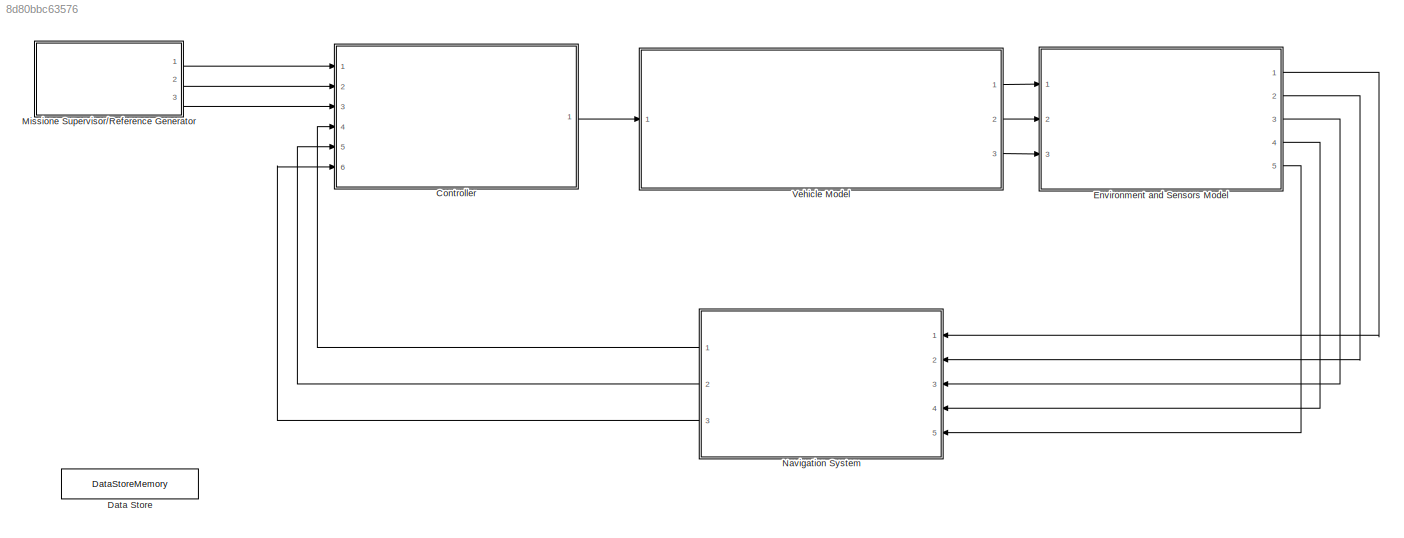
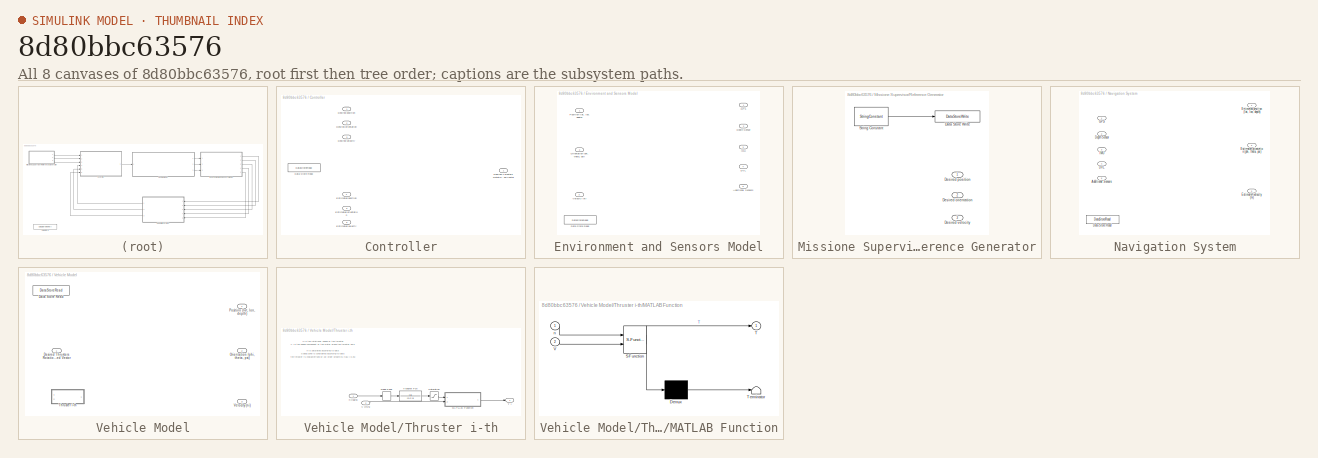
[diagram: thumbnail index - all 8 canvases of the model, root first then tree order]
MODEL slx_8d80bbc63576
KIND model
CONFIG AbsTol = auto
CONFIG EnableMultiTasking = off
CONFIG FixedStep = auto
CONFIG MaxStep = auto
CONFIG MinStep = auto
CONFIG RelTol = 1e-3
CONFIG SampleTimeConstraint = Unconstrained
CONFIG Solver = VariableStepAuto
CONFIG SolverName = VariableStepAuto
CONFIG StartTime = 0.0
CONFIG StopTime = 40
BLOCK [SubSystem] Controller
  Ports = [6, 1]
  RequestExecContextInheritance = off
BLOCK [DataStoreRead] Controller/Data Store Read
  DataStoreName = current_state
  Ports = [0, 1]
  SampleTime = 0.001
BLOCK [Outport] Controller/Desired Thrusters Rotational Speed Vector
  IconDisplay = Port number
BLOCK [Inport] Controller/Desired orientation
  IconDisplay = Port number
  Port = 2
BLOCK [Inport] Controller/Desired position
  IconDisplay = Port number
BLOCK [Inport] Controller/Desired velocity
  IconDisplay = Port number
  Port = 3
BLOCK [Inport] Controller/Estimated orientation
  IconDisplay = Port number
  Port = 5
BLOCK [Inport] Controller/Estimated position
  IconDisplay = Port number
  Port = 4
BLOCK [Inport] Controller/Estimated velocity
  IconDisplay = Port number
  Port = 6
BLOCK [DataStoreMemory] Data Store
  DataStoreName = current_state
  ReadBeforeWriteMsg = warning
  ShowAdditionalParam = off
  WriteAfterReadMsg = warning
  WriteAfterWriteMsg = warning
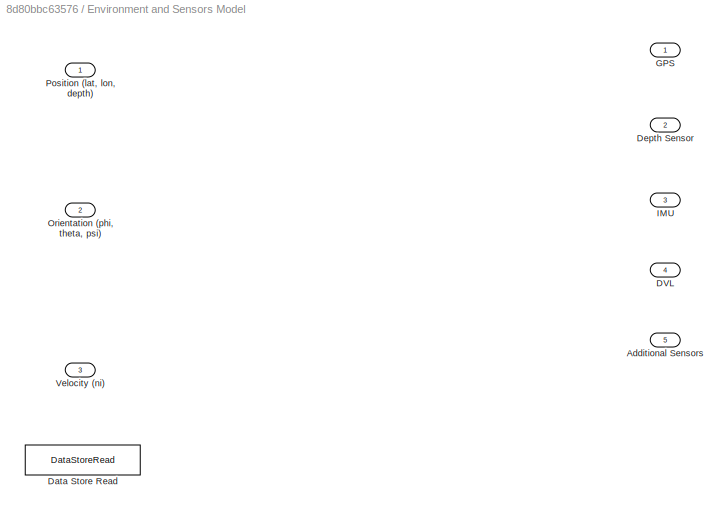
BLOCK [SubSystem] Environment and Sensors Model
  Ports = [3, 5]
  RequestExecContextInheritance = off
BLOCK [Outport] Environment and Sensors Model/Additional Sensors
  IconDisplay = Port number
  Port = 5
BLOCK [Outport] Environment and Sensors Model/DVL
  IconDisplay = Port number
  Port = 4
BLOCK [DataStoreRead] Environment and Sensors Model/Data Store Read
  DataStoreName = current_state
  Ports = [0, 1]
  SampleTime = 0.001
BLOCK [Outport] Environment and Sensors Model/Depth Sensor
  IconDisplay = Port number
  Port = 2
BLOCK [Outport] Environment and Sensors Model/GPS
  IconDisplay = Port number
BLOCK [Outport] Environment and Sensors Model/IMU
  IconDisplay = Port number
  Port = 3
BLOCK [Inport] Environment and Sensors Model/Orientation (phi, theta, psi)
  IconDisplay = Port number
  Port = 2
BLOCK [Inport] Environment and Sensors Model/Position (lat, lon, depth)
  IconDisplay = Port number
BLOCK [Inport] Environment and Sensors Model/Velocity (ni)
  IconDisplay = Port number
  Port = 3
BLOCK [SubSystem] Missione Supervisor//Reference Generator
  Ports = [0, 3]
  RequestExecContextInheritance = off
BLOCK [DataStoreWrite] Missione Supervisor//Reference Generator/Data Store Write
  DataStoreName = current_state
  Ports = [1]
BLOCK [Outport] Missione Supervisor//Reference Generator/Desired orientation
  IconDisplay = Port number
  Port = 2
BLOCK [Outport] Missione Supervisor//Reference Generator/Desired position
  IconDisplay = Port number
BLOCK [Outport] Missione Supervisor//Reference Generator/Desired velocity
  IconDisplay = Port number
  Port = 3
BLOCK [StringConstant] Missione Supervisor//Reference Generator/String Constant
  String = "Init"
BLOCK [SubSystem] Navigation System
  Ports = [5, 3]
  RequestExecContextInheritance = off
BLOCK [Inport] Navigation System/Additional Sensors
  IconDisplay = Port number
  Port = 5
BLOCK [Inport] Navigation System/DVL
  IconDisplay = Port number
  Port = 4
BLOCK [DataStoreRead] Navigation System/Data Store Read
  DataStoreName = current_state
  Ports = [0, 1]
  SampleTime = 0.001
BLOCK [Inport] Navigation System/Depth Sensor
  IconDisplay = Port number
  Port = 2
BLOCK [Outport] Navigation System/Estimated  velocity (ni)
  IconDisplay = Port number
  Port = 3
BLOCK [Outport] Navigation System/Estimated orientation (phi, theta, psi)
  IconDisplay = Port number
  Port = 2
BLOCK [Outport] Navigation System/Estimated position (lat, lon, depth)
  IconDisplay = Port number
BLOCK [Inport] Navigation System/GPS
  IconDisplay = Port number
BLOCK [Inport] Navigation System/IMU
  IconDisplay = Port number
  Port = 3
BLOCK [SubSystem] Vehicle Model
  Ports = [1, 3]
  RequestExecContextInheritance = off
BLOCK [DataStoreRead] Vehicle Model/Data Store Read
  DataStoreName = current_state
  Ports = [0, 1]
  SampleTime = 0.001
BLOCK [Inport] Vehicle Model/Desired Thrusters Rotational Speed Vector
  IconDisplay = Port number
BLOCK [Outport] Vehicle Model/Orientation (phi, theta, psi)
  IconDisplay = Port number
  Port = 2
BLOCK [Outport] Vehicle Model/Position (lat, lon, depth)
  IconDisplay = Port number
BLOCK [SubSystem] Vehicle Model/Thruster i-th
  Ports = [2, 1]
  RequestExecContextInheritance = off
BLOCK [DeadZone] Vehicle Model/Thruster i-th/Dead Zone
  LowerValue = -dead_zone_limit
  UpperValue = dead_zone_limit
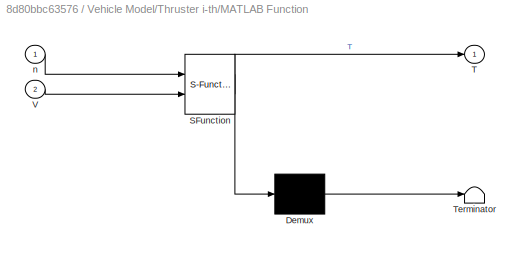
BLOCK [SubSystem] Vehicle Model/Thruster i-th/MATLAB Function
  ErrorFcn = Stateflow.Translate.translate
  PermitHierarchicalResolution = ExplicitOnly
  Ports = [2, 1]
  RequestExecContextInheritance = off
  SFBlockType = MATLAB Function
  TreatAsAtomicUnit = on
BLOCK [Demux] Vehicle Model/Thruster i-th/MATLAB Function/ Demux 
  Outputs = 1
  Ports = [1, 1]
BLOCK [S-Function] Vehicle Model/Thruster i-th/MATLAB Function/ SFunction 
  EnableBusSupport = on
  FunctionName = sf_sfun
  Parameters = D,a1,a2,alpha1,alpha2,omega
  PortCounts = [2 2]
  Ports = [2, 2]
  SFcnIsStateOwnerBlock = off
  SFunctionDeploymentMode = off
  Tag = Stateflow S-Function 2
BLOCK [Terminator] Vehicle Model/Thruster i-th/MATLAB Function/ Terminator 
BLOCK [Outport] Vehicle Model/Thruster i-th/MATLAB Function/T
  IconDisplay = Port number
BLOCK [Inport] Vehicle Model/Thruster i-th/MATLAB Function/V
  IconDisplay = Port number
  Port = 2
BLOCK [Inport] Vehicle Model/Thruster i-th/MATLAB Function/n
  IconDisplay = Port number
BLOCK [Saturate] Vehicle Model/Thruster i-th/Saturation
  InputPortMap = u0
  LowerLimit = -n_max
  Ports = [1, 1]
  UpperLimit = n_max
BLOCK [Outport] Vehicle Model/Thruster i-th/T i
  IconDisplay = Port number
BLOCK [TransferFcn] Vehicle Model/Thruster i-th/Transfer Fcn
  Denominator = [0.2 1]
BLOCK [Inport] Vehicle Model/Thruster i-th/V [m//s]
  IconDisplay = Port number
  Port = 2
BLOCK [Inport] Vehicle Model/Thruster i-th/n [rad//s]
  IconDisplay = Port number
BLOCK [Outport] Vehicle Model/Velocity (ni)
  IconDisplay = Port number
  Port = 3
ANNOTATION Vehicle Model/Thruster i-th: n is the rotational speed of the thruster V is the speed component of the water along the thruster axis n is saturated according to data a dead zone is considered according to data the thruster is characterised by 1st order dynamics (tau = 0.2s)
LINE Controller:1 -> Vehicle Model:1
LINE Environment and Sensors Model:1 -> Navigation System:1
LINE Environment and Sensors Model:2 -> Navigation System:2
LINE Environment and Sensors Model:3 -> Navigation System:3
LINE Environment and Sensors Model:4 -> Navigation System:4
LINE Environment and Sensors Model:5 -> Navigation System:5
LINE Missione Supervisor//Reference Generator/String Constant:1 -> Missione Supervisor//Reference Generator/Data Store Write:1
LINE Missione Supervisor//Reference Generator:1 -> Controller:1
LINE Missione Supervisor//Reference Generator:2 -> Controller:2
LINE Missione Supervisor//Reference Generator:3 -> Controller:3
LINE Navigation System:1 -> Controller:4
LINE Navigation System:2 -> Controller:5
LINE Navigation System:3 -> Controller:6
LINE Vehicle Model/Thruster i-th/Dead Zone:1 -> Vehicle Model/Thruster i-th/Transfer Fcn:1
LINE Vehicle Model/Thruster i-th/MATLAB Function:1 -> Vehicle Model/Thruster i-th/T i:1
LINE Vehicle Model/Thruster i-th/Saturation:1 -> Vehicle Model/Thruster i-th/MATLAB Function:1
LINE Vehicle Model/Thruster i-th/Transfer Fcn:1 -> Vehicle Model/Thruster i-th/Saturation:1
LINE Vehicle Model/Thruster i-th/V [m//s]:1 -> Vehicle Model/Thruster i-th/MATLAB Function:2
LINE Vehicle Model/Thruster i-th/n [rad//s]:1 -> Vehicle Model/Thruster i-th/Dead Zone:1
LINE Vehicle Model:1 -> Environment and Sensors Model:1
LINE Vehicle Model:2 -> Environment and Sensors Model:2
LINE Vehicle Model:3 -> Environment and Sensors Model:3
CHART Vehicle Model/Thruster i-th/MATLAB Function states=1 transitions=1
  STATE_LABEL 'eML_blk_kernel()'
  STATE_LABEL 'SCRIPT:\nfunction T = thrusterModel(n, V, D, omega, a1, a2, alpha1, alpha2)\n\nVa = (1-omega) * V;     % Advancement velocity at the propeller\nJ0 = Va/(n*D);          % Advancement Coefficient\n\nif J0 > -alpha1/alpha2  % Out of linearity domain (right side)\n    T = 0;              % A null generated thrust is assumed\n    \nelseif J0 < 0           % Out of linearity domain (left side)\n    T = a1*abs(n)*...<+127ch>'
